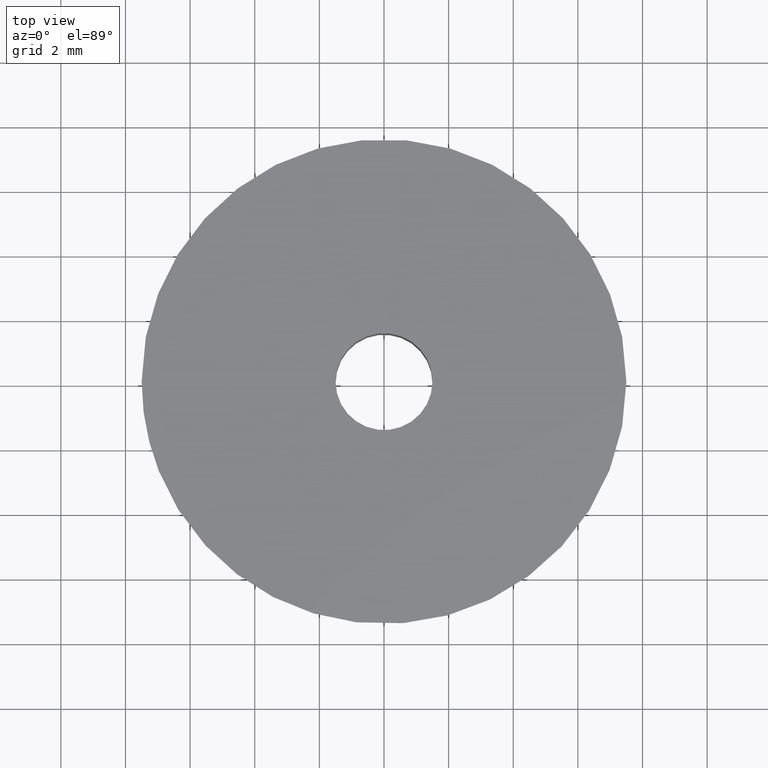
[diagram: clean part render]
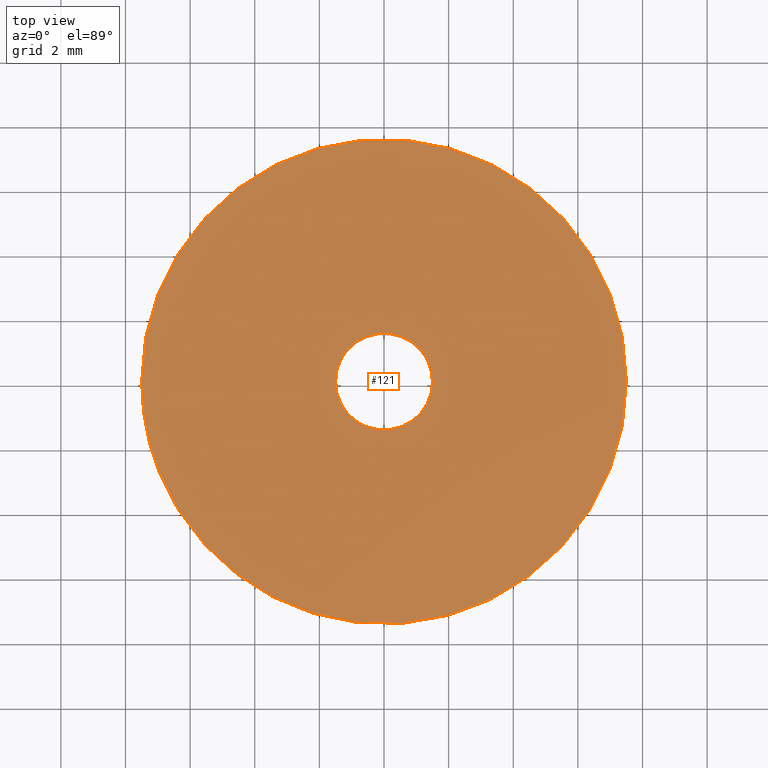
[diagram: same view with one face highlighted and labeled with its STEP entity id]
A machine part, top view. The second image highlights one B-rep face of the part: STEP entity #121.
In plain terms, the highlighted planar face has unit normal (0, 0, -1).
Its self-contained STEP definition (entity closure, byte-faithful):
#121=ADVANCED_FACE('',(#229,#230),#228,.F.);
#228=PLANE('',#435);
#229=FACE_OUTER_BOUND('',#436,.T.);
#230=FACE_BOUND('',#437,.T.);
#432=CARTESIAN_POINT('',(9.00000000910E+000,-9.00000000000E+000,8.00000000000E+000));
#433=DIRECTION('',(0.00000000000E+000,0.00000000000E+000,-1.00000000000E+000));
#434=DIRECTION('',(-1.00000000000E+000,0.00000000000E+000,0.00000000000E+000));
#435=AXIS2_PLACEMENT_3D('',#432,#433,#434);
#436=EDGE_LOOP('',(#602,#603,#604,#605));
#437=EDGE_LOOP('',(#606,#607,#608));
#602=ORIENTED_EDGE('',*,*,#704,.F.);
#603=ORIENTED_EDGE('',*,*,#701,.F.);
#604=ORIENTED_EDGE('',*,*,#706,.F.);
#605=ORIENTED_EDGE('',*,*,#705,.F.);
#606=ORIENTED_EDGE('',*,*,#718,.T.);
#607=ORIENTED_EDGE('',*,*,#719,.T.);
#608=ORIENTED_EDGE('',*,*,#720,.T.);
#701=EDGE_CURVE('',#872,#879,#880,.T.);
#704=EDGE_CURVE('',#879,#899,#900,.T.);
#705=EDGE_CURVE('',#899,#906,#907,.T.);
#706=EDGE_CURVE('',#906,#872,#913,.T.);
#718=EDGE_CURVE('',#995,#996,#997,.T.);
#719=EDGE_CURVE('',#996,#1003,#1004,.T.);
#720=EDGE_CURVE('',#1003,#995,#1010,.T.);
#872=VERTEX_POINT('',#1281);
#879=VERTEX_POINT('',#1285);
#880=(BOUNDED_CURVE() B_SPLINE_CURVE(2,(#1286,#1287,#1288,#1289,#1290),.UNSPECIFIED.,.F.,.F.) B_SPLINE_CURVE_WITH_KNOTS((3,2,3),(7.36331399222E-001,7.50000000000E-001,9.37532605544E-001),.UNSPECIFIED.) CURVE() GEOMETRIC_REPRESENTATION_ITEM() RATIONAL_B_SPLINE_CURVE((9.69723561919E-001,9.83986238085E-001,1.00000000000E+000,7.80291886119E-001,8.90203252680E-001)) REPRESENTATION_ITEM('') );
#899=VERTEX_POINT('',#1299);
#900=CIRCLE('',#1303,7.49999927790E+000);
#906=VERTEX_POINT('',#1304);
#907=CIRCLE('',#1308,7.50000000000E+000);
#913=CIRCLE('',#1312,7.49999994097E+000);
#995=VERTEX_POINT('',#1367);
#996=VERTEX_POINT('',#1368);
#997=CIRCLE('',#1372,1.50000000000E+000);
#1003=VERTEX_POINT('',#1373);
#1004=CIRCLE('',#1377,1.50000000000E+000);
#1010=CIRCLE('',#1381,1.50000000000E+000);
#1281=CARTESIAN_POINT('',(5.88438914321E-001,-7.47688029604E+000,7.99999927176E+000));
#1285=CARTESIAN_POINT('',(-6.97398407699E+000,-2.75926536369E+000,7.99999920353E+000));
#1286=CARTESIAN_POINT('',(5.88438914321E-001,-7.47688029604E+000,7.99999927176E+000));
#1287=CARTESIAN_POINT('',(2.94673642547E-001,-7.50000000000E+000,8.00000000000E+000));
#1288=CARTESIAN_POINT('',(0.00000000000E+000,-7.50000000000E+000,8.00000000000E+000));
#1289=CARTESIAN_POINT('',(-5.09830665033E+000,-7.50000000000E+000,8.00000000000E+000));
#1290=CARTESIAN_POINT('',(-6.97398407699E+000,-2.75926536369E+000,7.99999920353E+000));
#1299=CARTESIAN_POINT('',(-7.50000000000E+000,0.00000000000E+000,8.00000000000E+000));
#1300=CARTESIAN_POINT('',(-7.22109271045E-007,-2.34921149200E-009,7.99998864378E+000));
#1301=DIRECTION('',(-1.51416237786E-006,-4.94854753115E-016,-9.99999999999E-001));
#1302=DIRECTION('',(9.29864536844E-001,3.67902083600E-001,-1.40796589838E-006));
#1303=AXIS2_PLACEMENT_3D('',#1300,#1301,#1302);
#1304=CARTESIAN_POINT('',(7.50000000000E+000,0.00000000000E+000,8.00000000000E+000));
#1305=CARTESIAN_POINT('',(0.00000000000E+000,0.00000000000E+000,8.00000000000E+000));
#1306=DIRECTION('',(0.00000000000E+000,0.00000000000E+000,-1.00000000000E+000));
#1307=DIRECTION('',(1.00000000000E+000,-0.00000000000E+000,-0.00000000000E+000));
#1308=AXIS2_PLACEMENT_3D('',#1305,#1306,#1307);
#1309=CARTESIAN_POINT('',(5.90268411926E-008,-8.90675488918E-009,7.99999920976E+000));
#1310=DIRECTION('',(1.05365811365E-007,8.82315015805E-024,-1.00000000000E+000));
#1311=DIRECTION('',(-1.00000000000E+000,-1.18756732790E-009,-1.05365811365E-007));
#1312=AXIS2_PLACEMENT_3D('',#1309,#1310,#1311);
#1367=CARTESIAN_POINT('',(-1.50000000000E+000,-7.49400541622E-016,8.00000000000E+000));
#1368=CARTESIAN_POINT('',(-1.77308843490E-001,1.48948366021E+000,8.00000000000E+000));
#1369=CARTESIAN_POINT('',(2.10942374679E-015,1.22124532709E-015,8.00000000000E+000));
#1370=DIRECTION('',(2.07882235872E-016,2.47099549006E-017,-1.00000000000E+000));
#1371=DIRECTION('',(-1.00000000000E+000,-9.71445146547E-016,-2.07882235872E-016));
#1372=AXIS2_PLACEMENT_3D('',#1369,#1370,#1371);
#1373=CARTESIAN_POINT('',(1.77050807278E-001,-1.48951435429E+000,8.00000000000E+000));
#1374=CARTESIAN_POINT('',(2.10942374679E-015,1.22124532709E-015,8.00000000000E+000));
#1375=DIRECTION('',(2.07882235872E-016,2.47099549006E-017,-1.00000000000E+000));
#1376=DIRECTION('',(-1.00000000000E+000,-9.71445146547E-016,-2.07882235872E-016));
#1377=AXIS2_PLACEMENT_3D('',#1374,#1375,#1376);
#1378=CARTESIAN_POINT('',(2.10942374679E-015,1.22124532709E-015,8.00000000000E+000));
#1379=DIRECTION('',(2.07882235872E-016,2.47099549006E-017,-1.00000000000E+000));
#1380=DIRECTION('',(-1.00000000000E+000,-9.71445146547E-016,-2.07882235872E-016));
#1381=AXIS2_PLACEMENT_3D('',#1378,#1379,#1380);